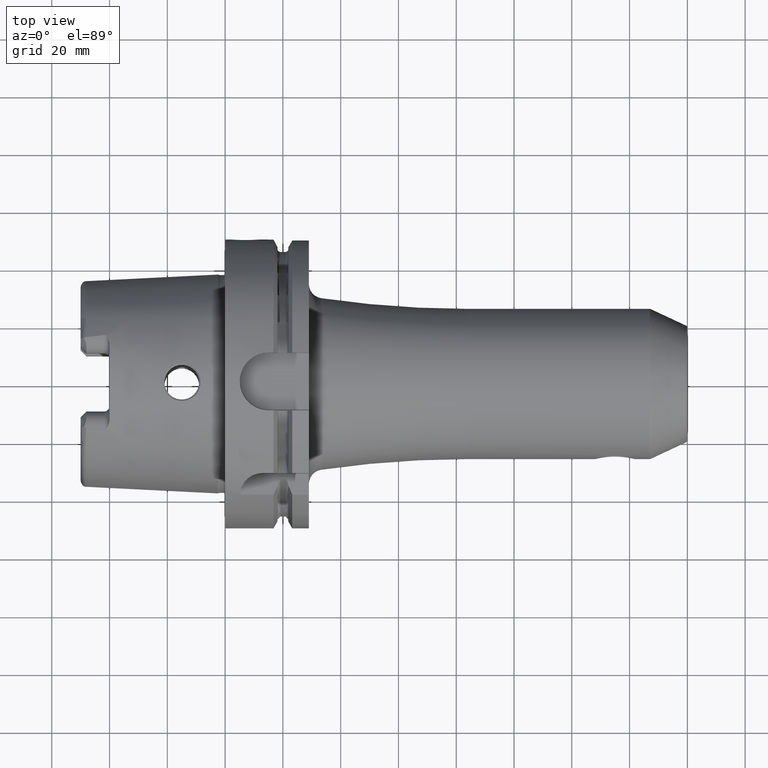
[diagram: clean part render]
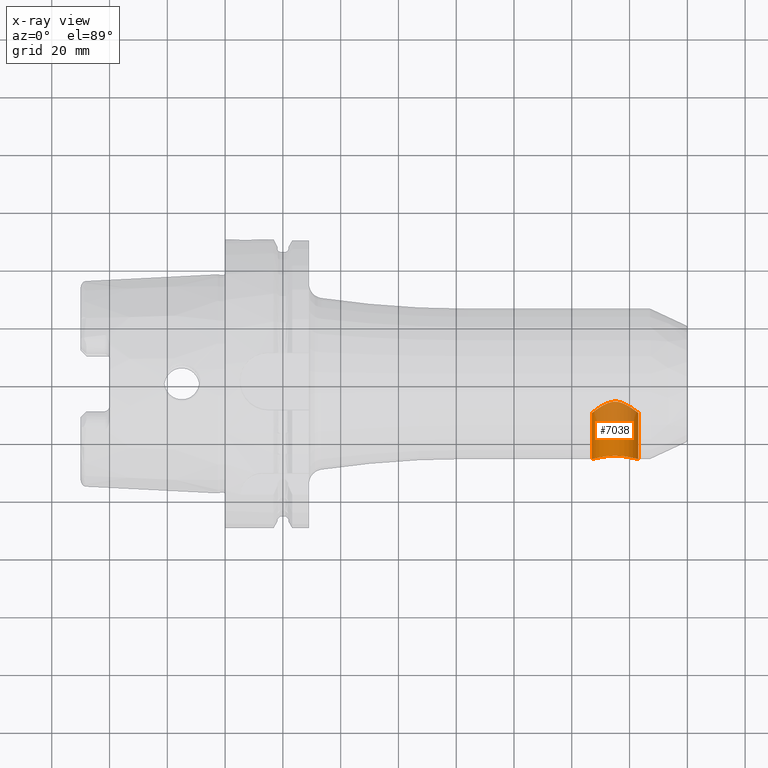
[diagram: x-ray — body ghosted, one internal face saturated and labeled with its STEP entity id]
A machine part, top view, then the same camera in x-ray: the body is ghosted and one INTERNAL B-rep face — a face not visible from any outside direction — is saturated and labeled: STEP entity #7038.
In plain terms, the highlighted cylindrical surface (edge-blend (fillet) strip) has radius 8 mm, axis along (0, -1, 0).
Its self-contained STEP definition (entity closure, byte-faithful):
#6873=CARTESIAN_POINT('',(1.43E2,-2.600001053470E1,0.E0));
#6874=CARTESIAN_POINT('',(1.43E2,-2.600001053470E1,-2.835218663119E-1));
#6875=CARTESIAN_POINT('',(1.429698374146E2,-2.599069002612E1,
-8.516533244646E-1));
#6876=CARTESIAN_POINT('',(1.428334783179E2,-2.594906381825E1,
-1.697525064170E0));
#6877=CARTESIAN_POINT('',(1.426067947984E2,-2.588128934638E1,
-2.526860993013E0));
#6878=CARTESIAN_POINT('',(1.422893798339E2,-2.578944454630E1,
-3.334188729533E0));
#6879=CARTESIAN_POINT('',(1.418841231104E2,-2.567740241863E1,
-4.106710228988E0));
#6880=CARTESIAN_POINT('',(1.413919723675E2,-2.554934959108E1,
-4.837532975172E0));
#6881=CARTESIAN_POINT('',(1.408216741006E2,-2.541210372018E1,
-5.510810654854E0));
#6882=CARTESIAN_POINT('',(1.401774515182E2,-2.527173779522E1,-6.119995282E0));
#6883=CARTESIAN_POINT('',(1.394745641325E2,-2.513660971484E1,
-6.651058832210E0));
#6884=CARTESIAN_POINT('',(1.387189012092E2,-2.501269248447E1,
-7.100999015018E0));
#6885=CARTESIAN_POINT('',(1.379287933426E2,-2.490709779959E1,
-7.461387083880E0));
#6886=CARTESIAN_POINT('',(1.371077448939E2,-2.482367949046E1,
-7.733253114051E0));
#6887=CARTESIAN_POINT('',(1.362729703242E2,-2.476659096237E1,
-7.913416195188E0));
#6888=CARTESIAN_POINT('',(1.354239004775E2,-2.473740418865E1,
-8.003817920767E0));
#6889=CARTESIAN_POINT('',(1.345760564014E2,-2.473740502081E1,
-8.003815343536E0));
#6890=CARTESIAN_POINT('',(1.337269924980E2,-2.476659279903E1,
-7.913410506511E0));
#6891=CARTESIAN_POINT('',(1.328922078754E2,-2.482368357408E1,
-7.733239988408E0));
#6892=CARTESIAN_POINT('',(1.320711750414E2,-2.490710148344E1,
-7.461374969458E0));
#6893=CARTESIAN_POINT('',(1.312810502961E2,-2.501269974270E1,
-7.100973363539E0));
#6894=CARTESIAN_POINT('',(1.305254102910E2,-2.513661428042E1,
-6.651041935686E0));
#6895=CARTESIAN_POINT('',(1.298225024971E2,-2.527174723309E1,
-6.119956120676E0));
#6896=CARTESIAN_POINT('',(1.291783068462E2,-2.541210814031E1,
-5.510790782713E0));
#6897=CARTESIAN_POINT('',(1.286079894920E2,-2.554935912771E1,
-4.837482271832E0));
#6898=CARTESIAN_POINT('',(1.281158646064E2,-2.567740576913E1,
-4.106689935733E0));
#6899=CARTESIAN_POINT('',(1.277105914790E2,-2.578945263463E1,
-3.334126299027E0));
#6900=CARTESIAN_POINT('',(1.273931991588E2,-2.588129118548E1,
-2.526840149326E0));
#6901=CARTESIAN_POINT('',(1.271665135790E2,-2.594906625800E1,
-1.697487449143E0));
#6902=CARTESIAN_POINT('',(1.270301636181E2,-2.599068970537E1,
-8.516519849906E-1));
#6903=CARTESIAN_POINT('',(1.27E2,-2.600001057268E1,-2.835220824473E-1));
#6904=CARTESIAN_POINT('',(1.27E2,-2.600001057268E1,0.E0));
#6906=CARTESIAN_POINT('',(1.27E2,-1.E1,0.E0));
#6907=CARTESIAN_POINT('',(1.27E2,-1.E1,-2.454946229660E-1));
#6908=CARTESIAN_POINT('',(1.270226106327E2,-9.981896988012E0,
-7.388635223309E-1));
#6909=CARTESIAN_POINT('',(1.271260466588E2,-9.899340091038E0,
-1.479193913822E0));
#6910=CARTESIAN_POINT('',(1.272998843391E2,-9.761470383433E0,
-2.214424622026E0));
#6911=CARTESIAN_POINT('',(1.275506303936E2,-9.564637349989E0,
-2.952065523883E0));
#6912=CARTESIAN_POINT('',(1.278819177292E2,-9.308494734307E0,
-3.681590257071E0));
#6913=CARTESIAN_POINT('',(1.283010695569E2,-8.991329291320E0,
-4.400567363861E0));
#6914=CARTESIAN_POINT('',(1.288149877436E2,-8.614174411319E0,
-5.099561812291E0));
#6915=CARTESIAN_POINT('',(1.294208166496E2,-8.188630376937E0,
-5.756964242778E0));
#6916=CARTESIAN_POINT('',(1.301063062666E2,-7.735839229322E0,
-6.350757326429E0));
#6917=CARTESIAN_POINT('',(1.308652207705E2,-7.277388322392E0,
-6.868546456029E0));
#6918=CARTESIAN_POINT('',(1.316388759931E2,-6.866610361683E0,
-7.275674900387E0));
#6919=CARTESIAN_POINT('',(1.323786966276E2,-6.536472760889E0,
-7.571108300340E0));
#6920=CARTESIAN_POINT('',(1.330795118050E2,-6.288806364243E0,
-7.776490884154E0));
#6921=CARTESIAN_POINT('',(1.337386641226E2,-6.120201877405E0,
-7.908979843621E0));
#6922=CARTESIAN_POINT('',(1.343787109827E2,-6.021205644714E0,
-7.984167667952E0));
#6923=CARTESIAN_POINT('',(1.350000172502E2,-5.989396006718E0,
-8.007917035475E0));
#6924=CARTESIAN_POINT('',(1.356213443857E2,-6.021210328630E0,
-7.984164189987E0));
#6925=CARTESIAN_POINT('',(1.362614077784E2,-6.120217081456E0,
-7.908968084894E0));
#6926=CARTESIAN_POINT('',(1.369205305422E2,-6.288820327928E0,
-7.776479714438E0));
#6927=CARTESIAN_POINT('',(1.376213194526E2,-6.536480418375E0,
-7.571100847195E0));
#6928=CARTESIAN_POINT('',(1.383611483078E2,-6.866618310060E0,
-7.275670335113E0));
#6929=CARTESIAN_POINT('',(1.391349891714E2,-7.277507043308E0,
-6.868422214946E0));
#6930=CARTESIAN_POINT('',(1.398937414834E2,-7.735873597403E0,
-6.350708787953E0));
#6931=CARTESIAN_POINT('',(1.405791108179E2,-8.188581442031E0,
-5.757029701856E0));
#6932=CARTESIAN_POINT('',(1.411849245738E2,-8.614111311729E0,
-5.099668208694E0));
#6933=CARTESIAN_POINT('',(1.416988606734E2,-8.991277172080E0,
-4.400673615848E0));
#6934=CARTESIAN_POINT('',(1.421180223600E2,-9.308448818487E0,
-3.681707319178E0));
#6935=CARTESIAN_POINT('',(1.424493360090E2,-9.564611090800E0,
-2.952153147798E0));
#6936=CARTESIAN_POINT('',(1.427000925948E2,-9.761452171615E0,
-2.214504829016E0));
#6937=CARTESIAN_POINT('',(1.428739409259E2,-9.899330192808E0,
-1.479265388805E0));
#6938=CARTESIAN_POINT('',(1.429773881417E2,-9.981896003705E0,
-7.388907052045E-1));
#6939=CARTESIAN_POINT('',(1.43E2,-1.E1,-2.455036020452E-1));
#6940=CARTESIAN_POINT('',(1.43E2,-1.E1,0.E0));
#6975=DIRECTION('',(0.E0,1.E0,0.E0));
#6976=VECTOR('',#6975,1.600001053470E1);
#6977=CARTESIAN_POINT('',(1.43E2,-2.600001053470E1,0.E0));
#6978=LINE('',#6977,#6976);
#7015=DIRECTION('',(0.E0,1.E0,0.E0));
#7016=VECTOR('',#7015,1.600001057268E1);
#7017=CARTESIAN_POINT('',(1.27E2,-2.600001057268E1,0.E0));
#7018=LINE('',#7017,#7016);
#7019=VERTEX_POINT('',#6904);
#7020=VERTEX_POINT('',#6873);
#7021=VERTEX_POINT('',#6940);
#7022=VERTEX_POINT('',#6906);
#7023=CARTESIAN_POINT('',(1.35E2,5.716325549853E0,0.E0));
#7024=DIRECTION('',(0.E0,-1.E0,0.E0));
#7025=DIRECTION('',(-1.E0,0.E0,0.E0));
#7026=AXIS2_PLACEMENT_3D('',#7023,#7024,#7025);
#7027=CYLINDRICAL_SURFACE('',#7026,8.E0);
#7029=ORIENTED_EDGE('',*,*,#7028,.T.);
#7031=ORIENTED_EDGE('',*,*,#7030,.T.);
#7033=ORIENTED_EDGE('',*,*,#7032,.T.);
#7035=ORIENTED_EDGE('',*,*,#7034,.F.);
#7036=EDGE_LOOP('',(#7029,#7031,#7033,#7035));
#7037=FACE_OUTER_BOUND('',#7036,.F.);
#7038=ADVANCED_FACE('',(#7037),#7027,.F.);
#6905=B_SPLINE_CURVE_WITH_KNOTS('',3,(#6873,#6874,#6875,#6876,#6877,#6878,#6879,
#6880,#6881,#6882,#6883,#6884,#6885,#6886,#6887,#6888,#6889,#6890,#6891,#6892,
#6893,#6894,#6895,#6896,#6897,#6898,#6899,#6900,#6901,#6902,#6903,#6904),
.UNSPECIFIED.,.F.,.F.,(4,1,1,1,1,1,1,1,1,1,1,1,1,1,1,1,1,1,1,1,1,1,1,1,1,1,1,1,
1,4),(0.E0,3.448275862069E-2,6.896551724138E-2,1.034482758621E-1,
1.379310344828E-1,1.724137931034E-1,2.068965517241E-1,2.413793103448E-1,
2.758620689655E-1,3.103448275862E-1,3.448275862069E-1,3.793103448276E-1,
4.137931034483E-1,4.482758620690E-1,4.827586206897E-1,5.172413793103E-1,
5.517241379310E-1,5.862068965517E-1,6.206896551724E-1,6.551724137931E-1,
6.896551724138E-1,7.241379310345E-1,7.586206896552E-1,7.931034482759E-1,
8.275862068966E-1,8.620689655172E-1,8.965517241379E-1,9.310344827586E-1,
9.655172413793E-1,1.E0),.UNSPECIFIED.);
#6941=B_SPLINE_CURVE_WITH_KNOTS('',3,(#6906,#6907,#6908,#6909,#6910,#6911,#6912,
#6913,#6914,#6915,#6916,#6917,#6918,#6919,#6920,#6921,#6922,#6923,#6924,#6925,
#6926,#6927,#6928,#6929,#6930,#6931,#6932,#6933,#6934,#6935,#6936,#6937,#6938,
#6939,#6940),.UNSPECIFIED.,.F.,.F.,(4,1,1,1,1,1,1,1,1,1,1,1,1,1,1,1,1,1,1,1,1,1,
1,1,1,1,1,1,1,1,1,1,4),(0.E0,3.125E-2,6.25E-2,9.375E-2,1.25E-1,1.5625E-1,
1.875E-1,2.1875E-1,2.5E-1,2.8125E-1,3.125E-1,3.4375E-1,3.75E-1,4.0625E-1,
4.375E-1,4.6875E-1,5.E-1,5.3125E-1,5.625E-1,5.9375E-1,6.25E-1,6.5625E-1,
6.875E-1,7.1875E-1,7.5E-1,7.8125E-1,8.125E-1,8.4375E-1,8.75E-1,9.0625E-1,
9.375E-1,9.6875E-1,1.E0),.UNSPECIFIED.);
#7028=EDGE_CURVE('',#7020,#7019,#6905,.T.);
#7030=EDGE_CURVE('',#7019,#7022,#7018,.T.);
#7032=EDGE_CURVE('',#7022,#7021,#6941,.T.);
#7034=EDGE_CURVE('',#7020,#7021,#6978,.T.);